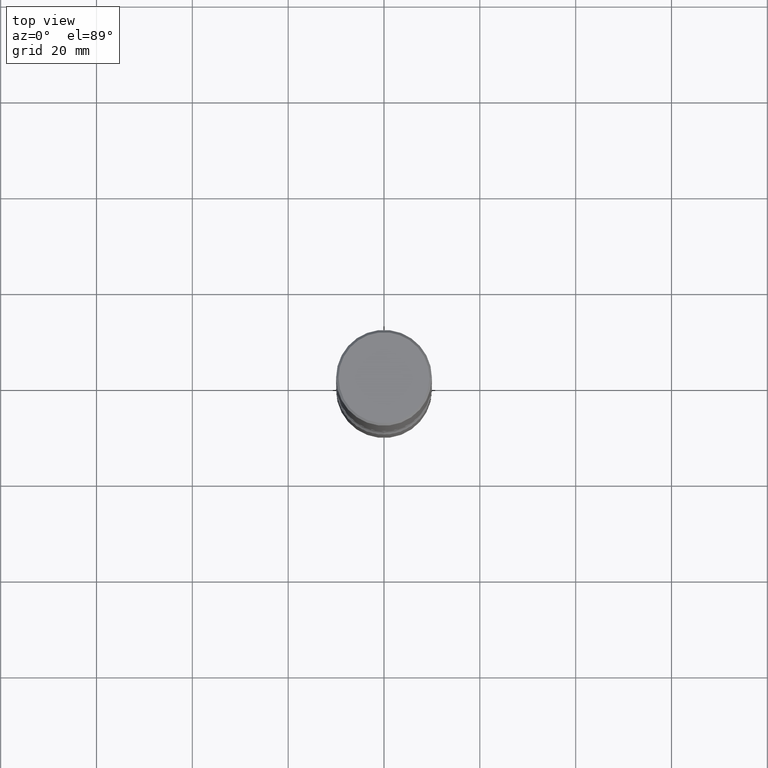
[diagram: clean part render]
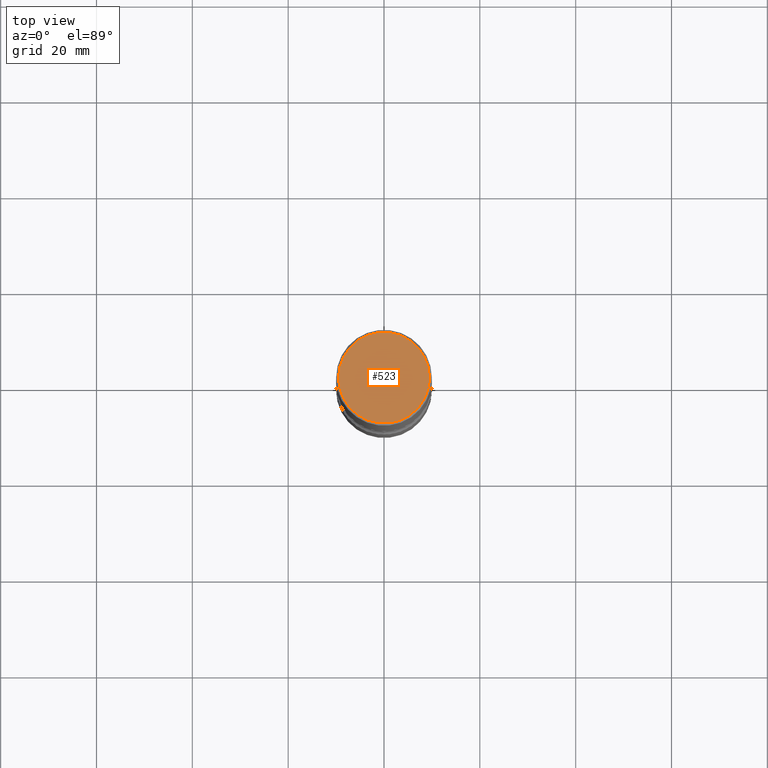
[diagram: same view with one face highlighted and labeled with its STEP entity id]
A machine part, top view. The second image highlights one B-rep face of the part: STEP entity #523.
In plain terms, the highlighted planar face has unit normal (0, -0, -1).
Its self-contained STEP definition (entity closure, byte-faithful):
#7 = VERTEX_POINT ( 'NONE', #16 ) ;
#12 = ORIENTED_EDGE ( 'NONE', *, *, #421, .T. ) ;
#16 = CARTESIAN_POINT ( 'NONE',  ( -0.3736999999999999211, 2.644447966039788269E-15, 8.537024980182450727E-18 ) ) ;
#31 = EDGE_CURVE ( 'NONE', #7, #296, #190, .T. ) ;
#57 = DIRECTION ( 'NONE',  ( 2.438088387897960049E-29, -3.491481338843145188E-15, -1.000000000000000000 ) ) ;
#65 = CARTESIAN_POINT ( 'NONE',  ( -2.087702828670439639E-46, 2.980686340760894400E-32, 8.537024980200822558E-18 ) ) ;
#102 = PLANE ( 'NONE',  #301 ) ;
#139 = DIRECTION ( 'NONE',  ( 1.000000000000000000, -6.982962677686266711E-15, 4.876212485538976239E-29 ) ) ;
#165 = AXIS2_PLACEMENT_3D ( 'NONE', #65, #453, #456 ) ;
#172 = EDGE_LOOP ( 'NONE', ( #217, #12 ) ) ;
#190 = CIRCLE ( 'NONE', #165, 0.3736999999999999211 ) ;
#217 = ORIENTED_EDGE ( 'NONE', *, *, #31, .T. ) ;
#274 = CARTESIAN_POINT ( 'NONE',  ( 2.609533152651356620E-15, 0.3736999999999999211, -1.300498063835582814E-15 ) ) ;
#296 = VERTEX_POINT ( 'NONE', #402 ) ;
#301 = AXIS2_PLACEMENT_3D ( 'NONE', #274, #57, #405 ) ;
#351 = CARTESIAN_POINT ( 'NONE',  ( -2.087702828670439639E-46, 2.980686340760894400E-32, 8.537024980200822558E-18 ) ) ;
#371 = CIRCLE ( 'NONE', #555, 0.3736999999999999211 ) ;
#402 = CARTESIAN_POINT ( 'NONE',  ( 0.3736999999999999211, -2.667287895133367964E-15, 8.537024980219274507E-18 ) ) ;
#405 = DIRECTION ( 'NONE',  ( -1.000000000000000000, 6.982962677686265922E-15, -4.876176775795935793E-29 ) ) ;
#421 = EDGE_CURVE ( 'NONE', #296, #7, #371, .T. ) ;
#453 = DIRECTION ( 'NONE',  ( -2.445468806185136597E-29, 3.491481338843145583E-15, 1.000000000000000000 ) ) ;
#456 = DIRECTION ( 'NONE',  ( 1.000000000000000000, -6.982962677686266711E-15, 4.876212485538976239E-29 ) ) ;
#498 = FACE_OUTER_BOUND ( 'NONE', #172, .T. ) ;
#523 = ADVANCED_FACE ( 'NONE', ( #498 ), #102, .F. ) ;
#528 = DIRECTION ( 'NONE',  ( -2.445468806185136597E-29, 3.491481338843145583E-15, 1.000000000000000000 ) ) ;
#555 = AXIS2_PLACEMENT_3D ( 'NONE', #351, #528, #139 ) ;